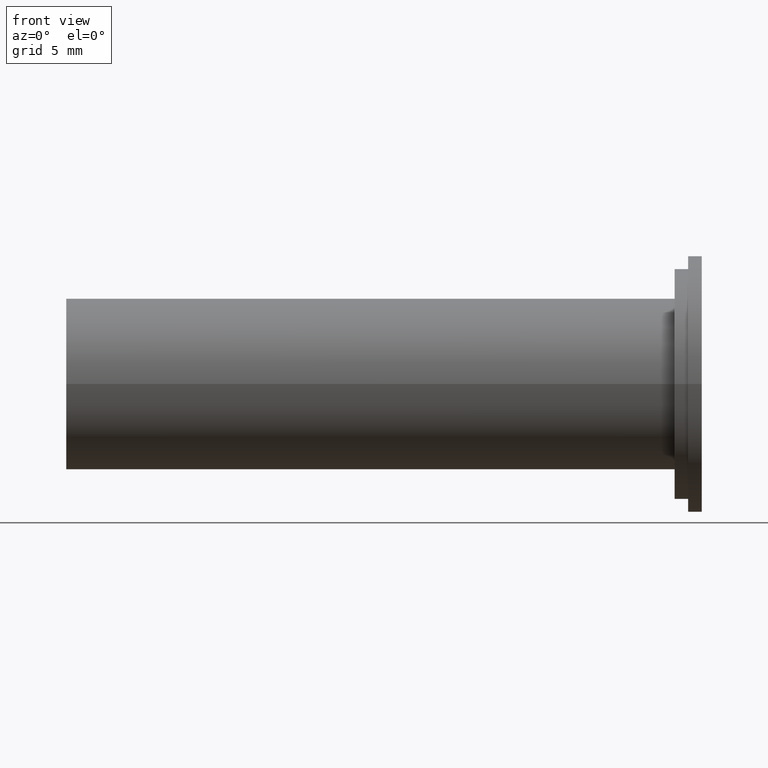
[diagram: clean part render]
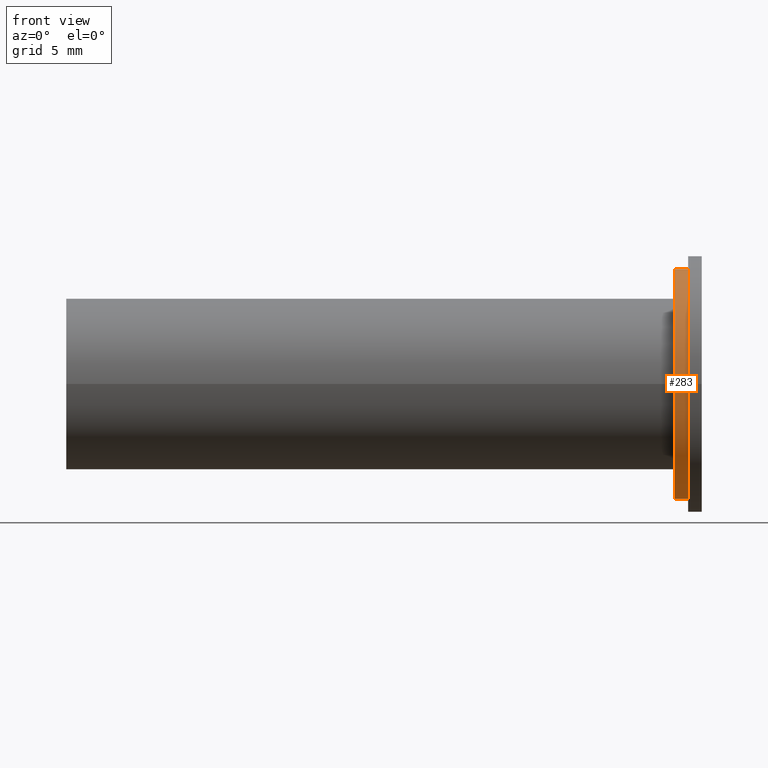
[diagram: same view with one face highlighted and labeled with its STEP entity id]
A machine part, front view. The second image highlights one B-rep face of the part: STEP entity #283.
In plain terms, the highlighted cylindrical surface (bore or boss wall) has radius 8.5 mm, axis along (1, 0, 0).
Its self-contained STEP definition (entity closure, byte-faithful):
#115=FACE_OUTER_BOUND('',#133,.T.);
#133=EDGE_LOOP('',(#259,#260,#261,#262));
#143=LINE('',#511,#153);
#153=VECTOR('',#422,8.5);
#164=CIRCLE('',#325,8.5);
#168=CIRCLE('',#334,8.5);
#183=VERTEX_POINT('',#493);
#187=VERTEX_POINT('',#508);
#205=EDGE_CURVE('',#183,#183,#164,.T.);
#211=EDGE_CURVE('',#187,#187,#168,.T.);
#212=EDGE_CURVE('',#183,#187,#143,.T.);
#259=ORIENTED_EDGE('',*,*,#205,.F.);
#260=ORIENTED_EDGE('',*,*,#212,.T.);
#261=ORIENTED_EDGE('',*,*,#211,.T.);
#262=ORIENTED_EDGE('',*,*,#212,.F.);
#269=CYLINDRICAL_SURFACE('',#335,8.5);
#283=ADVANCED_FACE('',(#115),#269,.T.);
#325=AXIS2_PLACEMENT_3D('',#494,#398,#399);
#334=AXIS2_PLACEMENT_3D('',#509,#418,#419);
#335=AXIS2_PLACEMENT_3D('',#510,#420,#421);
#398=DIRECTION('center_axis',(1.,0.,0.));
#399=DIRECTION('ref_axis',(0.,0.,-1.));
#418=DIRECTION('center_axis',(1.,0.,0.));
#419=DIRECTION('ref_axis',(0.,0.,-1.));
#420=DIRECTION('center_axis',(1.,0.,0.));
#421=DIRECTION('ref_axis',(0.,1.,0.));
#422=DIRECTION('',(-1.,0.,0.));
#493=CARTESIAN_POINT('',(-0.999999999999994,-8.5,-1.04094977927525E-15));
#494=CARTESIAN_POINT('Origin',(-0.999999999999994,0.,0.));
#508=CARTESIAN_POINT('',(-2.,-8.5,-1.04094977927525E-15));
#509=CARTESIAN_POINT('Origin',(-2.,0.,0.));
#510=CARTESIAN_POINT('Origin',(-1.5,0.,0.));
#511=CARTESIAN_POINT('',(-1.5,-8.5,-1.04094977927525E-15));